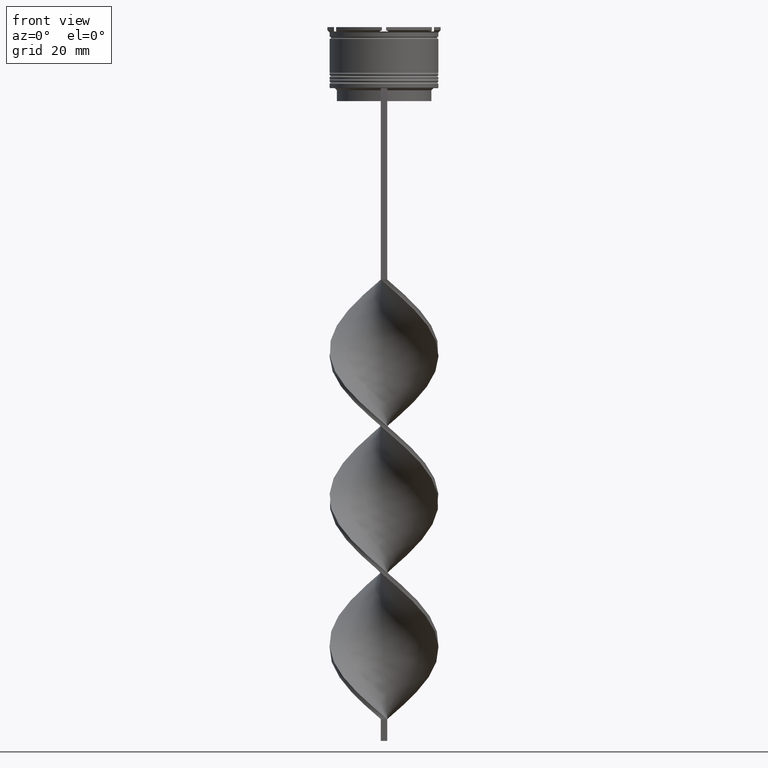
[diagram: clean part render]
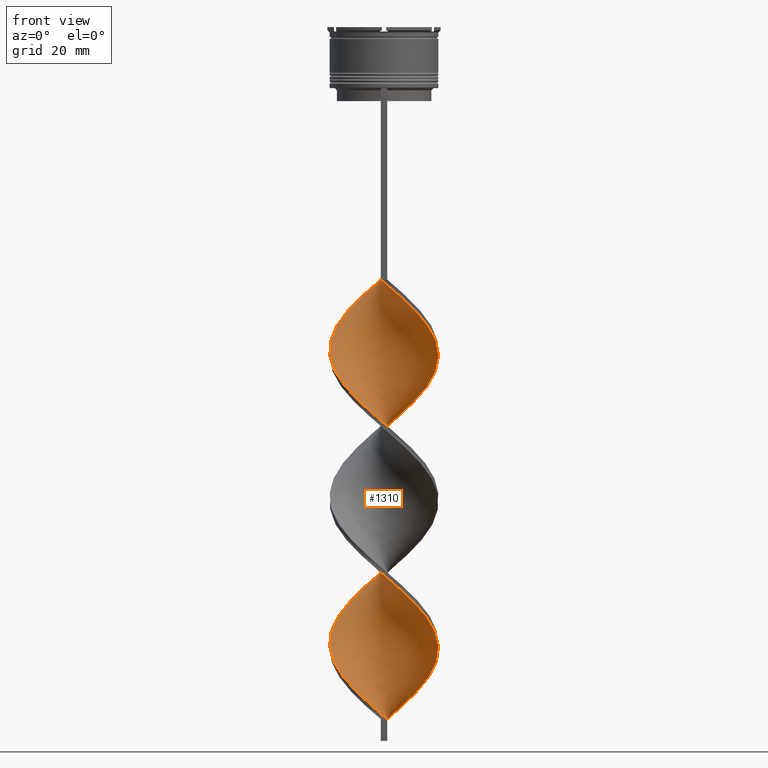
[diagram: same view with one face highlighted and labeled with its STEP entity id]
A machine part, front view. The second image highlights one B-rep face of the part: STEP entity #1310.
In plain terms, the highlighted face is a freeform B-spline surface patch.
Its self-contained STEP definition (entity closure, byte-faithful):
#5 = CARTESIAN_POINT ( 'NONE',  ( -12.13740119476140045, -3.350863215071107515, -144.4111111111111256 ) ) ;
#35 = CARTESIAN_POINT ( 'NONE',  ( 0.7499999999999983347, -12.50000000000000000, -91.66666666666667140 ) ) ;
#58 = CARTESIAN_POINT ( 'NONE',  ( -5.631329961908789983, -11.26201202755619768, -86.05555555555557135 ) ) ;
#63 = CARTESIAN_POINT ( 'NONE',  ( 8.787462363698281820, -8.921491198593773930, -66.97777777777777430 ) ) ;
#77 = CARTESIAN_POINT ( 'NONE',  ( -0.5638029408209594973, -12.57882817644926021, -90.54444444444445139 ) ) ;
#81 = CARTESIAN_POINT ( 'NONE',  ( 12.50992003955415832, 0.5607143693194618361, -75.95555555555554861 ) ) ;
#87 = CARTESIAN_POINT ( 'NONE',  ( -11.17548622105502254, -5.801146418745303457, -146.6555555555555657 ) ) ;
#100 = CARTESIAN_POINT ( 'NONE',  ( 3.332506835772350406, 12.07091124105925140, -156.7555555555555600 ) ) ;
#105 = CARTESIAN_POINT ( 'NONE',  ( -12.35312734465267503, 2.052497212371882540, -107.3777777777777942 ) ) ;
#110 = CARTESIAN_POINT ( 'NONE',  ( -3.166767928522321363, -12.18672937812252499, -155.6333333333333258 ) ) ;
#121 = CARTESIAN_POINT ( 'NONE',  ( -3.166767928522321363, -12.18672937812252499, -88.29999999999998295 ) ) ;
#126 = CARTESIAN_POINT ( 'NONE',  ( -11.78895181437690454, -4.423280136619386127, -112.9888888888888943 ) ) ;
#132 = CARTESIAN_POINT ( 'NONE',  ( 12.45098658456436169, -1.875559948311570135, -106.2555555555555742 ) ) ;
#137 = CARTESIAN_POINT ( 'NONE',  ( 7.849775853840624151, -9.845090710256194200, -65.85555555555555429 ) ) ;
#143 = CARTESIAN_POINT ( 'NONE',  ( -7.849775853840625039, -9.845090710256192423, -83.81111111111111711 ) ) ;
#147 = CARTESIAN_POINT ( 'NONE',  ( -0.7499999999999997780, -12.50000000000000000, -58.00000000000000000 ) ) ;
#151 = CARTESIAN_POINT ( 'NONE',  ( 0.5638029408209667137, 12.57882817644926021, -124.2111111111111370 ) ) ;
#158 = CARTESIAN_POINT ( 'NONE',  ( 12.11996919947063311, 3.149420042465477021, -78.20000000000000284 ) ) ;
#173 = CARTESIAN_POINT ( 'NONE',  ( -10.45031754730548457, -6.899519052838326338, -147.7777777777777715 ) ) ;
#179 = CARTESIAN_POINT ( 'NONE',  ( 10.61168328023406460, 6.777681757703949650, -81.56666666666666288 ) ) ;
#187 = CARTESIAN_POINT ( 'NONE',  ( -11.17548622105502076, -5.801146418745304345, -79.32222222222222285 ) ) ;
#197 = CARTESIAN_POINT ( 'NONE',  ( 9.725148873555948370, -7.997891686931351884, -68.10000000000000853 ) ) ;
#203 = CARTESIAN_POINT ( 'NONE',  ( -11.78895181437690276, 4.423280136619393232, -70.34444444444444855 ) ) ;
#207 = VERTEX_POINT ( 'NONE', #2902 ) ;
#213 = CARTESIAN_POINT ( 'NONE',  ( -7.849775853840619710, 9.845090710256194200, -99.52222222222223991 ) ) ;
#237 = CARTESIAN_POINT ( 'NONE',  ( 12.45098658456436169, -1.875559948311570357, -106.2555555555555742 ) ) ;
#260 = CARTESIAN_POINT ( 'NONE',  ( 12.11996919947063134, -3.149420042465480130, -105.1333333333333400 ) ) ;
#272 = CARTESIAN_POINT ( 'NONE',  ( 11.17548622105502076, -5.801146418745307898, -137.6777777777777487 ) ) ;
#277 = CARTESIAN_POINT ( 'NONE',  ( 5.769367131679449479, -11.11426573822566510, -96.15555555555556566 ) ) ;
#292 = CARTESIAN_POINT ( 'NONE',  ( 0.5638029408209559445, -12.57882817644925844, -126.4555555555555770 ) ) ;
#298 = CARTESIAN_POINT ( 'NONE',  ( 4.399048945215562334, 11.72437070283935689, -120.8444444444444485 ) ) ;
#319 = CARTESIAN_POINT ( 'NONE',  ( -11.20031754730548279, 5.600480947161673662, -136.5555555555555713 ) ) ;
#343 = CARTESIAN_POINT ( 'NONE',  ( -11.65644370790820972, -4.576004816908207040, -78.20000000000000284 ) ) ;
#364 = CARTESIAN_POINT ( 'NONE',  ( 3.332506835772342857, -12.07091124105925317, -93.91111111111111143 ) ) ;
#369 = CARTESIAN_POINT ( 'NONE',  ( -2.063802940820966381, -12.42117182355074334, -124.2111111111111370 ) ) ;
#386 = CARTESIAN_POINT ( 'NONE',  ( -0.7499999999999997780, 12.50000000000000000, -58.00000000000000000 ) ) ;
#390 = CARTESIAN_POINT ( 'NONE',  ( -8.787462363698281820, 8.921491198593777483, -100.6444444444444599 ) ) ;
#394 = ORIENTED_EDGE ( 'NONE', *, *, #740, .T. ) ;
#407 = CARTESIAN_POINT ( 'NONE',  ( -12.35312734465267859, -2.052497212371871438, -75.95555555555554861 ) ) ;
#411 = CARTESIAN_POINT ( 'NONE',  ( 0.5638029408209559445, -12.57882817644926021, -59.12222222222222712 ) ) ;
#416 = CARTESIAN_POINT ( 'NONE',  ( -4.399048945215555229, -11.72437070283936045, -154.5111111111111200 ) ) ;
#427 = CARTESIAN_POINT ( 'NONE',  ( -9.725148873555948370, -7.997891686931350996, -81.56666666666664867 ) ) ;
#433 = CARTESIAN_POINT ( 'NONE',  ( -12.50992003955415832, -0.5607143693194575063, -109.6222222222222342 ) ) ;
#438 = CARTESIAN_POINT ( 'NONE',  ( -12.35312734465267859, -2.052497212371871438, -143.2888888888889198 ) ) ;
#445 = CARTESIAN_POINT ( 'NONE',  ( -12.11996919947063311, -3.149420042465475689, -111.8666666666666742 ) ) ;
#458 = CARTESIAN_POINT ( 'NONE',  ( -6.937523532635176515, -10.50788081788355832, -119.7222222222222143 ) ) ;
#462 = CARTESIAN_POINT ( 'NONE',  ( 12.13740119476140222, 3.350863215071099965, -110.7444444444444542 ) ) ;
#466 = CARTESIAN_POINT ( 'NONE',  ( -1.865285434671634324, 12.38277877728589260, -93.91111111111111143 ) ) ;
#471 = CARTESIAN_POINT ( 'NONE',  ( -12.56885349454395495, -0.7541312096726363601, -74.83333333333332860 ) ) ;
#479 = CARTESIAN_POINT ( 'NONE',  ( 0.7499999999999983347, -12.50000000000000000, -159.0000000000000000 ) ) ;
#485 = CARTESIAN_POINT ( 'NONE',  ( -11.65644370790820794, 4.576004816908209705, -105.1333333333333400 ) ) ;
#493 = CARTESIAN_POINT ( 'NONE',  ( -12.35312734465267859, -2.052497212371871438, -75.95555555555554861 ) ) ;
#508 = CARTESIAN_POINT ( 'NONE',  ( 0.7500000000000013323, 12.50000000000000000, -159.0000000000000000 ) ) ;
#514 = CARTESIAN_POINT ( 'NONE',  ( -6.937523532635170298, 10.50788081788356187, -63.61111111111112137 ) ) ;
#523 = CARTESIAN_POINT ( 'NONE',  ( 6.937523532635174739, 10.50788081788355832, -86.05555555555557135 ) ) ;
#541 = CARTESIAN_POINT ( 'NONE',  ( 11.78895181437690276, 4.423280136619390568, -146.6555555555555657 ) ) ;
#545 = CARTESIAN_POINT ( 'NONE',  ( -5.631329961908789983, -11.26201202755619946, -153.3888888888889142 ) ) ;
#562 = CARTESIAN_POINT ( 'NONE',  ( 6.740552907874703514, -10.55355136890619860, -132.0666666666666629 ) ) ;
#566 = CARTESIAN_POINT ( 'NONE',  ( -7.849775853840625039, -9.845090710256192423, -151.1444444444444457 ) ) ;
#590 = CARTESIAN_POINT ( 'NONE',  ( -0.5638029408209594973, -12.57882817644925844, -90.54444444444445139 ) ) ;
#609 = CARTESIAN_POINT ( 'NONE',  ( 12.56885349454395495, 0.7541312096726348058, -108.5000000000000000 ) ) ;
#631 = CARTESIAN_POINT ( 'NONE',  ( 11.78895181437689743, -4.423280136619400338, -104.0111111111111057 ) ) ;
#651 = CARTESIAN_POINT ( 'NONE',  ( 0.7499999999999983347, -12.50000000000000000, -159.0000000000000000 ) ) ;
#658 = CARTESIAN_POINT ( 'NONE',  ( 12.11996919947063311, 3.149420042465477021, -145.5333333333333599 ) ) ;
#679 = CARTESIAN_POINT ( 'NONE',  ( 2.063802940820959275, 12.42117182355074334, -157.8777777777777942 ) ) ;
#685 = CARTESIAN_POINT ( 'NONE',  ( -8.970633266239085302, -8.835866163051408151, -117.4777777777777885 ) ) ;
#701 = CARTESIAN_POINT ( 'NONE',  ( 7.954078399437124247, -9.671873490467490342, -98.40000000000001990 ) ) ;
#706 = CARTESIAN_POINT ( 'NONE',  ( 11.65644370790820794, -4.576004816908208817, -71.46666666666668277 ) ) ;
#727 = CARTESIAN_POINT ( 'NONE',  ( 12.56885349454395495, -0.7541312096726379144, -142.1666666666666856 ) ) ;
#731 = CARTESIAN_POINT ( 'NONE',  ( 11.20031754730548457, 5.600480947161669221, -80.44444444444445708 ) ) ;
#737 = CARTESIAN_POINT ( 'NONE',  ( -5.631329961908789983, -11.26201202755619768, -153.3888888888889142 ) ) ;
#740 = EDGE_CURVE ( 'NONE', #207, #1861, #2352, .T. ) ;
#747 = CARTESIAN_POINT ( 'NONE',  ( -7.849775853840625039, -9.845090710256194200, -83.81111111111111711 ) ) ;
#751 = CARTESIAN_POINT ( 'NONE',  ( -12.13740119476139867, 3.350863215071115508, -106.2555555555555742 ) ) ;
#761 = CARTESIAN_POINT ( 'NONE',  ( 11.20031754730548457, 5.600480947161669221, -80.44444444444445708 ) ) ;
#771 = CARTESIAN_POINT ( 'NONE',  ( -1.865285434671634324, 12.38277877728589260, -93.91111111111111143 ) ) ;
#776 = CARTESIAN_POINT ( 'NONE',  ( 8.787462363698288925, 8.921491198593768601, -116.3555555555555685 ) ) ;
#782 = CARTESIAN_POINT ( 'NONE',  ( 5.631329961908785542, -11.26201202755620479, -63.61111111111112137 ) ) ;
#795 = CARTESIAN_POINT ( 'NONE',  ( 3.166767928522319586, -12.18672937812252499, -128.6999999999999886 ) ) ;
#800 = CARTESIAN_POINT ( 'NONE',  ( 12.50992003955415832, -0.5607143693194732714, -107.3777777777777942 ) ) ;
#804 = CARTESIAN_POINT ( 'NONE',  ( -0.7499999999999997780, -12.50000000000000000, -58.00000000000000000 ) ) ;
#819 = CARTESIAN_POINT ( 'NONE',  ( 9.725148873555950146, 7.997891686931350996, -115.2333333333333343 ) ) ;
#823 = CARTESIAN_POINT ( 'NONE',  ( -10.61168328023406637, -6.777681757703947873, -115.2333333333333343 ) ) ;
#829 = CARTESIAN_POINT ( 'NONE',  ( -0.7499999999999997780, 12.50000000000000000, -58.00000000000000000 ) ) ;
#842 = CARTESIAN_POINT ( 'NONE',  ( 12.45098658456435992, 1.875559948311562142, -77.07777777777778283 ) ) ;
#855 = VERTEX_POINT ( 'NONE', #651 ) ;
#863 = CARTESIAN_POINT ( 'NONE',  ( 5.769367131679455696, 11.11426573822565977, -154.5111111111111200 ) ) ;
#869 = CARTESIAN_POINT ( 'NONE',  ( 12.13740119476140222, 3.350863215071099965, -110.7444444444444542 ) ) ;
#880 = CARTESIAN_POINT ( 'NONE',  ( 11.20031754730548457, 5.600480947161669221, -147.7777777777777715 ) ) ;
#886 = CARTESIAN_POINT ( 'NONE',  ( 0.7499999999999983347, -12.50000000000000000, -91.66666666666667140 ) ) ;
#903 = CARTESIAN_POINT ( 'NONE',  ( 12.45098658456435992, 1.875559948311562142, -144.4111111111111256 ) ) ;
#907 = CARTESIAN_POINT ( 'NONE',  ( 7.954078399437124247, -9.671873490467490342, -98.40000000000001990 ) ) ;
#920 = ORIENTED_EDGE ( 'NONE', *, *, #2518, .F. ) ;
#928 = CARTESIAN_POINT ( 'NONE',  ( 2.063802940820950838, -12.42117182355074689, -92.78888888888889142 ) ) ;
#941 = CARTESIAN_POINT ( 'NONE',  ( -3.332506835772352183, -12.07091124105925140, -123.0888888888888886 ) ) ;
#945 = CARTESIAN_POINT ( 'NONE',  ( 7.849775853840630369, 9.845090710256187094, -117.4777777777777885 ) ) ;
#975 = CARTESIAN_POINT ( 'NONE',  ( -8.970633266239078196, 8.835866163051415256, -65.85555555555555429 ) ) ;
#999 = CARTESIAN_POINT ( 'NONE',  ( 12.45098658456435992, 1.875559948311562142, -144.4111111111111541 ) ) ;
#1004 = CARTESIAN_POINT ( 'NONE',  ( 2.063802940820959275, 12.42117182355074334, -90.54444444444445139 ) ) ;
#1016 = CARTESIAN_POINT ( 'NONE',  ( 7.954078399437126023, 9.671873490467488566, -152.2666666666666799 ) ) ;
#1022 = CARTESIAN_POINT ( 'NONE',  ( 7.849775853840622375, -9.845090710256195976, -65.85555555555555429 ) ) ;
#1039 = CARTESIAN_POINT ( 'NONE',  ( 11.20031754730548101, -5.600480947161677214, -102.8888888888888857 ) ) ;
#1044 = CARTESIAN_POINT ( 'NONE',  ( 5.769367131679455696, 11.11426573822565977, -87.17777777777779136 ) ) ;
#1052 = CARTESIAN_POINT ( 'NONE',  ( 11.17548622105502432, 5.801146418745299016, -112.9888888888888943 ) ) ;
#1063 = CARTESIAN_POINT ( 'NONE',  ( -10.45031754730548457, -6.899519052838326338, -80.44444444444445708 ) ) ;
#1068 = CARTESIAN_POINT ( 'NONE',  ( 12.35312734465267681, -2.052497212371875435, -73.71111111111112280 ) ) ;
#1072 = CARTESIAN_POINT ( 'NONE',  ( -7.954078399437124247, 9.671873490467490342, -132.0666666666666629 ) ) ;
#1078 = CARTESIAN_POINT ( 'NONE',  ( 10.45031754730548279, -6.899519052838330779, -69.22222222222222854 ) ) ;
#1086 = CARTESIAN_POINT ( 'NONE',  ( 10.45031754730548279, -6.899519052838330779, -69.22222222222222854 ) ) ;
#1088 = CARTESIAN_POINT ( 'NONE',  ( 6.740552907874707067, 10.55355136890619860, -118.6000000000000085 ) ) ;
#1095 = CARTESIAN_POINT ( 'NONE',  ( -3.166767928522318254, 12.18672937812252499, -95.03333333333331723 ) ) ;
#1104 = CARTESIAN_POINT ( 'NONE',  ( -5.631329961908789983, -11.26201202755619946, -86.05555555555557135 ) ) ;
#1109 = CARTESIAN_POINT ( 'NONE',  ( 1.865285434671637432, -12.38277877728589260, -127.5777777777777828 ) ) ;
#1119 = CARTESIAN_POINT ( 'NONE',  ( 2.063802940820959275, 12.42117182355074334, -90.54444444444445139 ) ) ;
#1153 = CARTESIAN_POINT ( 'NONE',  ( 1.865285434671637432, -12.38277877728589260, -60.24444444444444713 ) ) ;
#1175 = CARTESIAN_POINT ( 'NONE',  ( 12.13740119476140045, -3.350863215071111068, -139.9222222222222172 ) ) ;
#1181 = CARTESIAN_POINT ( 'NONE',  ( -2.063802940820955723, 12.42117182355074334, -59.12222222222222712 ) ) ;
#1192 = CARTESIAN_POINT ( 'NONE',  ( 12.35312734465267681, -2.052497212371875435, -141.0444444444444514 ) ) ;
#1198 = CARTESIAN_POINT ( 'NONE',  ( 10.61168328023406460, -6.777681757703953203, -101.7666666666666515 ) ) ;
#1220 = CARTESIAN_POINT ( 'NONE',  ( -4.399048945215555229, -11.72437070283936045, -154.5111111111111200 ) ) ;
#1244 = CARTESIAN_POINT ( 'NONE',  ( -11.65644370790820972, -4.576004816908207040, -145.5333333333333599 ) ) ;
#1261 = CARTESIAN_POINT ( 'NONE',  ( 7.954078399437126023, 9.671873490467488566, -152.2666666666666799 ) ) ;
#1265 = CARTESIAN_POINT ( 'NONE',  ( 6.937523532635167633, -10.50788081788356543, -97.27777777777779988 ) ) ;
#1286 = CARTESIAN_POINT ( 'NONE',  ( -11.17548622105502076, -5.801146418745304345, -146.6555555555555657 ) ) ;
#1310 = ADVANCED_FACE ( 'NONE', ( #2963 ), #1683, .T. ) ;
#1315 = CARTESIAN_POINT ( 'NONE',  ( 12.13740119476140045, -3.350863215071111068, -139.9222222222222172 ) ) ;
#1338 = CARTESIAN_POINT ( 'NONE',  ( 8.970633266239079973, 8.835866163051411704, -151.1444444444444457 ) ) ;
#1342 = CARTESIAN_POINT ( 'NONE',  ( -12.45098658456436169, -1.875559948311554814, -110.7444444444444542 ) ) ;
#1356 = CARTESIAN_POINT ( 'NONE',  ( 9.791158273236570508, -7.806773960377686450, -100.6444444444444599 ) ) ;
#1360 = CARTESIAN_POINT ( 'NONE',  ( 12.45098658456435992, 1.875559948311562142, -77.07777777777778283 ) ) ;
#1368 = CARTESIAN_POINT ( 'NONE',  ( 1.865285434671644538, 12.38277877728589083, -123.0888888888888886 ) ) ;
#1373 = DIRECTION ( 'NONE',  ( 0.000000000000000000, 1.000000000000000000, 0.000000000000000000 ) ) ;
#1379 = CARTESIAN_POINT ( 'NONE',  ( -4.601210730723737541, 11.72065065856775945, -61.36666666666666003 ) ) ;
#1384 = CARTESIAN_POINT ( 'NONE',  ( 9.725148873555946594, -7.997891686931353661, -68.10000000000002274 ) ) ;
#1392 = CARTESIAN_POINT ( 'NONE',  ( 4.399048945215562334, 11.72437070283935689, -120.8444444444444485 ) ) ;
#1402 = CARTESIAN_POINT ( 'NONE',  ( -7.954078399437124247, 9.671873490467490342, -64.73333333333333428 ) ) ;
#1407 = CARTESIAN_POINT ( 'NONE',  ( -3.166767928522318254, 12.18672937812252677, -95.03333333333331723 ) ) ;
#1410 = CARTESIAN_POINT ( 'NONE',  ( -11.78895181437690276, 4.423280136619394121, -137.6777777777777487 ) ) ;
#1415 = CARTESIAN_POINT ( 'NONE',  ( 11.17548622105502076, -5.801146418745307898, -70.34444444444444855 ) ) ;
#1422 = CARTESIAN_POINT ( 'NONE',  ( -6.740552907874705291, -10.55355136890619683, -84.93333333333333712 ) ) ;
#1427 = CARTESIAN_POINT ( 'NONE',  ( -11.65644370790820794, 4.576004816908209705, -105.1333333333333400 ) ) ;
#1429 = CARTESIAN_POINT ( 'NONE',  ( -0.7499999999999997780, 12.50000000000000000, -58.00000000000000000 ) ) ;
#1432 = CARTESIAN_POINT ( 'NONE',  ( -3.332506835772345077, 12.07091124105925317, -127.5777777777777828 ) ) ;
#1439 = CARTESIAN_POINT ( 'NONE',  ( -8.970633266239085302, -8.835866163051406375, -117.4777777777777885 ) ) ;
#1457 = CARTESIAN_POINT ( 'NONE',  ( -8.787462363698287149, -8.921491198593770378, -150.0222222222222115 ) ) ;
#1464 = CARTESIAN_POINT ( 'NONE',  ( -4.399048945215547235, 11.72437070283936222, -96.15555555555556566 ) ) ;
#1471 = CARTESIAN_POINT ( 'NONE',  ( -10.45031754730548457, -6.899519052838326338, -80.44444444444445708 ) ) ;
#1481 = CARTESIAN_POINT ( 'NONE',  ( 0.7499999999999983347, -12.50000000000000000, -159.0000000000000000 ) ) ;
#1486 = CARTESIAN_POINT ( 'NONE',  ( -3.166767928522320918, -12.18672937812252322, -88.29999999999998295 ) ) ;
#1519 = CARTESIAN_POINT ( 'NONE',  ( 3.166767928522319586, -12.18672937812252322, -128.7000000000000171 ) ) ;
#1524 = CARTESIAN_POINT ( 'NONE',  ( 9.725148873555950146, 7.997891686931350108, -115.2333333333333343 ) ) ;
#1541 = CARTESIAN_POINT ( 'NONE',  ( 12.35312734465267859, 2.052497212371866997, -109.6222222222222342 ) ) ;
#1561 = CARTESIAN_POINT ( 'NONE',  ( 10.45031754730548990, 6.899519052838320121, -114.1111111111111285 ) ) ;
#1577 = CARTESIAN_POINT ( 'NONE',  ( -4.601210730723740205, -11.72065065856775767, -121.9666666666666544 ) ) ;
#1582 = CARTESIAN_POINT ( 'NONE',  ( -4.601210730723736653, 11.72065065856775767, -128.7000000000000171 ) ) ;
#1602 = CARTESIAN_POINT ( 'NONE',  ( -11.78895181437690276, 4.423280136619393232, -137.6777777777777487 ) ) ;
#1611 = B_SPLINE_CURVE_WITH_KNOTS ( 'NONE', 3,
 ( #3890, #3578, #1984, #1481 ),
 .UNSPECIFIED., .F., .F.,
 ( 4, 4 ),
 ( 0.000000000000000000, 1.000000000000000000 ),
 .UNSPECIFIED. ) ;
#1625 = CARTESIAN_POINT ( 'NONE',  ( -4.399048945215555229, -11.72437070283936045, -87.17777777777779136 ) ) ;
#1649 = CARTESIAN_POINT ( 'NONE',  ( 10.45031754730548279, -6.899519052838330779, -136.5555555555555713 ) ) ;
#1656 = CARTESIAN_POINT ( 'NONE',  ( 12.13740119476140045, -3.350863215071111068, -72.58888888888890278 ) ) ;
#1673 = CARTESIAN_POINT ( 'NONE',  ( 0.7500000000000013323, 12.50000000000000000, -159.0000000000000000 ) ) ;
#1676 = CARTESIAN_POINT ( 'NONE',  ( 9.791158273236575837, 7.806773960377678456, -82.68888888888889710 ) ) ;
#1683 =( BOUNDED_SURFACE ( )  B_SPLINE_SURFACE ( 1, 2, ( 
 ( #147, #411, #3923, #2946, #1722, #2661, #2295, #1022, #63, #1384, #1086, #2683, #706, #1656, #1068, #1997, #81, #1360, #2720, #2318, #731, #3029, #1676, #2061, #3590, #3612, #1044, #3270, #2344, #1004, #3653, #2361, #771, #1407, #2017, #2035, #1700, #3011, #390, #3291, #3943, #2989, #1427, #751, #105, #3317, #433, #1342, #3567, #126, #2701, #3340, #3961, #685, #2381, #458, #1742, #1972, #3248, #369, #2639, #3900, #1109, #795, #3984, #2404, #3677, #2086, #2337, #2030, #1649, #3541, #3561, #1315, #2982, #727, #2013, #999, #658, #3264, #3895, #2916, #1717, #1338, #1016, #3628, #3241, #3004, #100, #679, #1673 ),
 ( #386, #3220, #3876, #1379, #3849, #2676, #1402, #975, #3607, #3309, #2940, #1940, #1962, #2612, #3939, #3287, #407, #2289, #343, #2960, #1063, #427, #2357, #747, #1695, #58, #1625, #121, #2268, #77, #35, #2653, #364, #2310, #2632, #3583, #701, #1991, #1356, #3917, #1039, #3658, #4010, #132, #800, #2044, #2993, #462, #3033, #1052, #2387, #819, #776, #3948, #1088, #2431, #1392, #2069, #1368, #151, #3345, #1747, #1432, #2705, #3681, #1769, #1072, #3988, #2686, #1685, #2020, #1410, #2091, #2971, #3297, #3966, #438, #3054, #2412, #87, #173, #3321, #1457, #2666, #2726, #737, #416, #110, #2750, #1707, #479 ) ),
 .UNSPECIFIED., .F., .F., .F. ) 
 B_SPLINE_SURFACE_WITH_KNOTS ( ( 2, 2 ),
 ( 3, 2, 2, 2, 2, 2, 2, 2, 2, 2, 2, 2, 2, 2, 2, 2, 2, 2, 2, 2, 2, 2, 2, 2, 2, 2, 2, 2, 2, 2, 2, 2, 2, 2, 2, 2, 2, 2, 2, 2, 2, 2, 2, 2, 2, 3 ),
 ( 0.000000000000000000, 1.000000000000000000 ),
 ( 0.000000000000000000, 0.01666666666666666644, 0.03333333333333333287, 0.05000000000000000278, 0.06666666666666666574, 0.08333333333333332871, 0.1000000000000000056, 0.1166666666666666685, 0.1333333333333333315, 0.1499999999999999944, 0.1666666666666666574, 0.1833333333333333204, 0.2000000000000000111, 0.2166666666666666741, 0.2333333333333333370, 0.2500000000000000000, 0.2666666666666666630, 0.2833333333333333259, 0.2999999999999999889, 0.3166666666666666519, 0.3333333333333333148, 0.3499999999999999778, 0.3666666666666666408, 0.3833333333333333592, 0.4000000000000000222, 0.4166666666666666852, 0.4333333333333333481, 0.4500000000000000111, 0.4666666666666666741, 0.4833333333333333370, 0.5000000000000000000, 0.5166666666666667185, 0.5333333333333333259, 0.5500000000000000444, 0.5666666666666666519, 0.5833333333333333703, 0.5999999999999999778, 0.6166666666666666963, 0.6333333333333333037, 0.6500000000000000222, 0.6666666666666666297, 0.6833333333333333481, 0.6999999999999999556, 0.7166666666666666741, 0.7333333333333332815, 0.7500000000000000000 ),
 .UNSPECIFIED. ) 
 GEOMETRIC_REPRESENTATION_ITEM ( )  RATIONAL_B_SPLINE_SURFACE ( (
 ( 1.000000000000000000, 0.9945218953682732899, 1.000000000000000000, 0.9945218953682732899, 1.000000000000000000, 0.9945218953682732899, 1.000000000000000000, 0.9945218953682732899, 1.000000000000000000, 0.9945218953682732899, 1.000000000000000000, 0.9945218953682732899, 1.000000000000000000, 0.9945218953682732899, 1.000000000000000000, 0.9945218953682732899, 1.000000000000000000, 0.9945218953682732899, 1.000000000000000000, 0.9945218953682732899, 1.000000000000000000, 0.9945218953682732899, 1.000000000000000000, 0.9945218953682732899, 1.000000000000000000, 0.9945218953682732899, 1.000000000000000000, 0.9945218953682732899, 1.000000000000000000, 0.9945218953682732899, 1.000000000000000000, 0.9945218953682732899, 1.000000000000000000, 0.9945218953682732899, 1.000000000000000000, 0.9945218953682732899, 1.000000000000000000, 0.9945218953682732899, 1.000000000000000000, 0.9945218953682732899, 1.000000000000000000, 0.9945218953682732899, 1.000000000000000000, 0.9945218953682732899, 1.000000000000000000, 0.9945218953682732899, 1.000000000000000000, 0.9945218953682732899, 1.000000000000000000, 0.9945218953682732899, 1.000000000000000000, 0.9945218953682732899, 1.000000000000000000, 0.9945218953682732899, 1.000000000000000000, 0.9945218953682732899, 1.000000000000000000, 0.9945218953682732899, 1.000000000000000000, 0.9945218953682732899, 1.000000000000000000, 0.9945218953682732899, 1.000000000000000000, 0.9945218953682732899, 1.000000000000000000, 0.9945218953682732899, 1.000000000000000000, 0.9945218953682732899, 1.000000000000000000, 0.9945218953682732899, 1.000000000000000000, 0.9945218953682732899, 1.000000000000000000, 0.9945218953682732899, 1.000000000000000000, 0.9945218953682732899, 1.000000000000000000, 0.9945218953682732899, 1.000000000000000000, 0.9945218953682732899, 1.000000000000000000, 0.9945218953682732899, 1.000000000000000000, 0.9945218953682732899, 1.000000000000000000, 0.9945218953682732899, 1.000000000000000000, 0.9945218953682732899, 1.000000000000000000, 0.9945218953682732899, 1.000000000000000000),
 ( 1.000000000000000000, 0.9945218953682732899, 1.000000000000000000, 0.9945218953682732899, 1.000000000000000000, 0.9945218953682732899, 1.000000000000000000, 0.9945218953682732899, 1.000000000000000000, 0.9945218953682732899, 1.000000000000000000, 0.9945218953682732899, 1.000000000000000000, 0.9945218953682732899, 1.000000000000000000, 0.9945218953682732899, 1.000000000000000000, 0.9945218953682732899, 1.000000000000000000, 0.9945218953682732899, 1.000000000000000000, 0.9945218953682732899, 1.000000000000000000, 0.9945218953682732899, 1.000000000000000000, 0.9945218953682732899, 1.000000000000000000, 0.9945218953682732899, 1.000000000000000000, 0.9945218953682732899, 1.000000000000000000, 0.9945218953682732899, 1.000000000000000000, 0.9945218953682732899, 1.000000000000000000, 0.9945218953682732899, 1.000000000000000000, 0.9945218953682732899, 1.000000000000000000, 0.9945218953682732899, 1.000000000000000000, 0.9945218953682732899, 1.000000000000000000, 0.9945218953682732899, 1.000000000000000000, 0.9945218953682732899, 1.000000000000000000, 0.9945218953682732899, 1.000000000000000000, 0.9945218953682732899, 1.000000000000000000, 0.9945218953682732899, 1.000000000000000000, 0.9945218953682732899, 1.000000000000000000, 0.9945218953682732899, 1.000000000000000000, 0.9945218953682732899, 1.000000000000000000, 0.9945218953682732899, 1.000000000000000000, 0.9945218953682732899, 1.000000000000000000, 0.9945218953682732899, 1.000000000000000000, 0.9945218953682732899, 1.000000000000000000, 0.9945218953682732899, 1.000000000000000000, 0.9945218953682732899, 1.000000000000000000, 0.9945218953682732899, 1.000000000000000000, 0.9945218953682732899, 1.000000000000000000, 0.9945218953682732899, 1.000000000000000000, 0.9945218953682732899, 1.000000000000000000, 0.9945218953682732899, 1.000000000000000000, 0.9945218953682732899, 1.000000000000000000, 0.9945218953682732899, 1.000000000000000000, 0.9945218953682732899, 1.000000000000000000, 0.9945218953682732899, 1.000000000000000000, 0.9945218953682732899, 1.000000000000000000) ) ) 
 REPRESENTATION_ITEM ( '' )  SURFACE ( )  );
#1685 = CARTESIAN_POINT ( 'NONE',  ( -10.61168328023406815, 6.777681757703951426, -135.4333333333333371 ) ) ;
#1695 = CARTESIAN_POINT ( 'NONE',  ( -6.740552907874705291, -10.55355136890619683, -84.93333333333333712 ) ) ;
#1700 = CARTESIAN_POINT ( 'NONE',  ( -6.740552907874702626, 10.55355136890619860, -98.40000000000001990 ) ) ;
#1707 = CARTESIAN_POINT ( 'NONE',  ( -0.5638029408209594973, -12.57882817644926021, -157.8777777777777942 ) ) ;
#1717 = CARTESIAN_POINT ( 'NONE',  ( 9.791158273236575837, 7.806773960377678456, -150.0222222222222115 ) ) ;
#1722 = CARTESIAN_POINT ( 'NONE',  ( 4.399048945215551676, -11.72437070283936222, -62.48888888888889426 ) ) ;
#1732 = CARTESIAN_POINT ( 'NONE',  ( -12.50992003955415832, -0.5607143693194575063, -109.6222222222222342 ) ) ;
#1738 = CARTESIAN_POINT ( 'NONE',  ( -9.725148873555948370, -7.997891686931350108, -81.56666666666666288 ) ) ;
#1741 = ORIENTED_EDGE ( 'NONE', *, *, #2553, .F. ) ;
#1742 = CARTESIAN_POINT ( 'NONE',  ( -5.769367131679462801, -11.11426573822565622, -120.8444444444444485 ) ) ;
#1747 = CARTESIAN_POINT ( 'NONE',  ( -2.063802940820956167, 12.42117182355074334, -126.4555555555555628 ) ) ;
#1752 = CARTESIAN_POINT ( 'NONE',  ( 0.7500000000000013323, 12.50000000000000000, -91.66666666666667140 ) ) ;
#1758 = CARTESIAN_POINT ( 'NONE',  ( -4.601210730723736653, 11.72065065856775767, -61.36666666666666003 ) ) ;
#1769 = CARTESIAN_POINT ( 'NONE',  ( -6.937523532635171186, 10.50788081788356187, -130.9444444444444287 ) ) ;
#1776 = CARTESIAN_POINT ( 'NONE',  ( -12.45098658456436169, -1.875559948311554592, -110.7444444444444542 ) ) ;
#1802 = CARTESIAN_POINT ( 'NONE',  ( -9.791158273236570508, 7.806773960377682897, -66.97777777777777430 ) ) ;
#1812 = CARTESIAN_POINT ( 'NONE',  ( 4.601210730723738429, 11.72065065856775767, -88.29999999999998295 ) ) ;
#1827 = CARTESIAN_POINT ( 'NONE',  ( 3.332506835772350406, 12.07091124105925140, -156.7555555555555600 ) ) ;
#1834 = CARTESIAN_POINT ( 'NONE',  ( 11.17548622105502254, 5.801146418745299904, -112.9888888888888943 ) ) ;
#1855 = CARTESIAN_POINT ( 'NONE',  ( -8.970633266239078196, 8.835866163051415256, -133.1888888888889255 ) ) ;
#1861 = VERTEX_POINT ( 'NONE', #1429 ) ;
#1875 = CARTESIAN_POINT ( 'NONE',  ( -9.791158273236570508, 7.806773960377682897, -134.3111111111111313 ) ) ;
#1886 = CARTESIAN_POINT ( 'NONE',  ( 12.50992003955415832, 0.5607143693194618361, -143.2888888888889198 ) ) ;
#1913 = CARTESIAN_POINT ( 'NONE',  ( 5.631329961908790871, 11.26201202755619946, -119.7222222222222143 ) ) ;
#1934 = CARTESIAN_POINT ( 'NONE',  ( -0.7499999999999997780, -12.50000000000000000, -58.00000000000000000 ) ) ;
#1940 = CARTESIAN_POINT ( 'NONE',  ( -11.78895181437690276, 4.423280136619394121, -70.34444444444443434 ) ) ;
#1962 = CARTESIAN_POINT ( 'NONE',  ( -12.11996919947063134, 3.149420042465478353, -71.46666666666668277 ) ) ;
#1972 = CARTESIAN_POINT ( 'NONE',  ( -4.601210730723740205, -11.72065065856775945, -121.9666666666666544 ) ) ;
#1977 = ORIENTED_EDGE ( 'NONE', *, *, #2347, .T. ) ;
#1984 = CARTESIAN_POINT ( 'NONE',  ( 0.7499999999999992228, -4.166666666666667851, -159.0000000000000000 ) ) ;
#1991 = CARTESIAN_POINT ( 'NONE',  ( 8.970633266239074644, -8.835866163051417033, -99.52222222222223991 ) ) ;
#1997 = CARTESIAN_POINT ( 'NONE',  ( 12.56885349454395495, -0.7541312096726379144, -74.83333333333334281 ) ) ;
#2013 = CARTESIAN_POINT ( 'NONE',  ( 12.50992003955415832, 0.5607143693194618361, -143.2888888888889198 ) ) ;
#2017 = CARTESIAN_POINT ( 'NONE',  ( -4.399048945215547235, 11.72437070283936222, -96.15555555555556566 ) ) ;
#2020 = CARTESIAN_POINT ( 'NONE',  ( -11.20031754730548279, 5.600480947161673662, -136.5555555555555713 ) ) ;
#2030 = CARTESIAN_POINT ( 'NONE',  ( 9.725148873555946594, -7.997891686931353661, -135.4333333333333371 ) ) ;
#2035 = CARTESIAN_POINT ( 'NONE',  ( -5.631329961908782877, 11.26201202755620123, -97.27777777777778567 ) ) ;
#2044 = CARTESIAN_POINT ( 'NONE',  ( 12.56885349454395495, 0.7541312096726349168, -108.5000000000000000 ) ) ;
#2050 = CARTESIAN_POINT ( 'NONE',  ( -5.631329961908782877, 11.26201202755620479, -97.27777777777779988 ) ) ;
#2057 = CARTESIAN_POINT ( 'NONE',  ( -12.50992003955415655, 0.5607143693194662770, -73.71111111111112280 ) ) ;
#2061 = CARTESIAN_POINT ( 'NONE',  ( 8.970633266239079973, 8.835866163051411704, -83.81111111111111711 ) ) ;
#2069 = CARTESIAN_POINT ( 'NONE',  ( 3.166767928522322695, 12.18672937812252499, -121.9666666666666544 ) ) ;
#2075 = CARTESIAN_POINT ( 'NONE',  ( 3.166767928522319586, -12.18672937812252322, -61.36666666666666003 ) ) ;
#2086 = CARTESIAN_POINT ( 'NONE',  ( 7.849775853840622375, -9.845090710256195976, -133.1888888888889255 ) ) ;
#2091 = CARTESIAN_POINT ( 'NONE',  ( -12.11996919947063134, 3.149420042465478353, -138.8000000000000114 ) ) ;
#2096 = CARTESIAN_POINT ( 'NONE',  ( 11.65644370790820794, -4.576004816908208817, -71.46666666666668277 ) ) ;
#2101 = CARTESIAN_POINT ( 'NONE',  ( -11.65644370790820972, -4.576004816908207040, -78.20000000000000284 ) ) ;
#2116 = CARTESIAN_POINT ( 'NONE',  ( 4.399048945215551676, -11.72437070283936222, -62.48888888888889426 ) ) ;
#2135 = CARTESIAN_POINT ( 'NONE',  ( 11.78895181437690276, 4.423280136619390568, -79.32222222222222285 ) ) ;
#2153 = CARTESIAN_POINT ( 'NONE',  ( 4.601210730723738429, 11.72065065856775767, -155.6333333333333542 ) ) ;
#2158 = CARTESIAN_POINT ( 'NONE',  ( 6.740552907874707067, 10.55355136890619860, -118.6000000000000085 ) ) ;
#2180 = CARTESIAN_POINT ( 'NONE',  ( 8.787462363698288925, 8.921491198593768601, -116.3555555555555685 ) ) ;
#2196 = CARTESIAN_POINT ( 'NONE',  ( 8.970633266239079973, 8.835866163051411704, -151.1444444444444457 ) ) ;
#2201 = CARTESIAN_POINT ( 'NONE',  ( -8.787462363698287149, -8.921491198593770378, -150.0222222222222115 ) ) ;
#2217 = CARTESIAN_POINT ( 'NONE',  ( 12.11996919947063311, 3.149420042465477021, -145.5333333333333599 ) ) ;
#2238 = CARTESIAN_POINT ( 'NONE',  ( 3.166767928522322695, 12.18672937812252322, -121.9666666666666544 ) ) ;
#2268 = CARTESIAN_POINT ( 'NONE',  ( -1.865285434671642761, -12.38277877728589083, -89.42222222222223138 ) ) ;
#2289 = CARTESIAN_POINT ( 'NONE',  ( -12.13740119476140045, -3.350863215071107515, -77.07777777777778283 ) ) ;
#2295 = CARTESIAN_POINT ( 'NONE',  ( 6.740552907874703514, -10.55355136890619860, -64.73333333333333428 ) ) ;
#2310 = CARTESIAN_POINT ( 'NONE',  ( 4.601210730723735765, -11.72065065856776123, -95.03333333333331723 ) ) ;
#2318 = CARTESIAN_POINT ( 'NONE',  ( 11.78895181437690276, 4.423280136619390568, -79.32222222222222285 ) ) ;
#2337 = CARTESIAN_POINT ( 'NONE',  ( 8.787462363698281820, -8.921491198593773930, -134.3111111111111313 ) ) ;
#2344 = CARTESIAN_POINT ( 'NONE',  ( 3.332506835772350406, 12.07091124105925140, -89.42222222222223138 ) ) ;
#2347 = EDGE_CURVE ( 'NONE', #1861, #855, #4132, .T. ) ;
#2352 = LINE ( 'NONE', #1934, #2910 ) ;
#2357 = CARTESIAN_POINT ( 'NONE',  ( -8.787462363698287149, -8.921491198593770378, -82.68888888888889710 ) ) ;
#2361 = CARTESIAN_POINT ( 'NONE',  ( -0.5638029408209509485, 12.57882817644926376, -92.78888888888889142 ) ) ;
#2371 = CARTESIAN_POINT ( 'NONE',  ( 12.50992003955415832, 0.5607143693194618361, -75.95555555555554861 ) ) ;
#2381 = CARTESIAN_POINT ( 'NONE',  ( -7.954078399437126912, -9.671873490467486789, -118.6000000000000085 ) ) ;
#2387 = CARTESIAN_POINT ( 'NONE',  ( 10.45031754730548990, 6.899519052838320121, -114.1111111111111285 ) ) ;
#2393 = CARTESIAN_POINT ( 'NONE',  ( -10.45031754730548101, 6.899519052838334332, -102.8888888888888857 ) ) ;
#2404 = CARTESIAN_POINT ( 'NONE',  ( 5.631329961908785542, -11.26201202755620123, -130.9444444444444287 ) ) ;
#2412 = CARTESIAN_POINT ( 'NONE',  ( -11.65644370790820972, -4.576004816908207040, -145.5333333333333599 ) ) ;
#2423 = CARTESIAN_POINT ( 'NONE',  ( -12.13740119476140045, -3.350863215071107515, -77.07777777777778283 ) ) ;
#2431 = CARTESIAN_POINT ( 'NONE',  ( 5.631329961908790871, 11.26201202755619768, -119.7222222222222143 ) ) ;
#2435 = CARTESIAN_POINT ( 'NONE',  ( 7.954078399437126023, 9.671873490467488566, -84.93333333333333712 ) ) ;
#2457 = CARTESIAN_POINT ( 'NONE',  ( 12.35312734465267681, -2.052497212371875435, -73.71111111111112280 ) ) ;
#2476 = CARTESIAN_POINT ( 'NONE',  ( -6.937523532635175627, -10.50788081788355832, -119.7222222222222143 ) ) ;
#2481 = CARTESIAN_POINT ( 'NONE',  ( -11.20031754730548279, 5.600480947161673662, -69.22222222222222854 ) ) ;
#2498 = CARTESIAN_POINT ( 'NONE',  ( -5.769367131679452143, 11.11426573822566155, -129.8222222222222229 ) ) ;
#2518 = EDGE_CURVE ( 'NONE', #3289, #855, #1611, .T. ) ;
#2520 = CARTESIAN_POINT ( 'NONE',  ( -1.865285434671642761, -12.38277877728589083, -156.7555555555555600 ) ) ;
#2538 = CARTESIAN_POINT ( 'NONE',  ( -5.769367131679462801, -11.11426573822565622, -120.8444444444444485 ) ) ;
#2544 = CARTESIAN_POINT ( 'NONE',  ( 8.970633266239074644, -8.835866163051417033, -99.52222222222223991 ) ) ;
#2553 = EDGE_CURVE ( 'NONE', #207, #3289, #4009, .T. ) ;
#2560 = CARTESIAN_POINT ( 'NONE',  ( 11.20031754730548101, -5.600480947161677214, -102.8888888888888857 ) ) ;
#2582 = CARTESIAN_POINT ( 'NONE',  ( -9.725148873555948370, -7.997891686931350108, -148.8999999999999773 ) ) ;
#2612 = CARTESIAN_POINT ( 'NONE',  ( -12.45098658456435992, 1.875559948311566361, -72.58888888888890278 ) ) ;
#2632 = CARTESIAN_POINT ( 'NONE',  ( 5.769367131679449479, -11.11426573822566510, -96.15555555555556566 ) ) ;
#2639 = CARTESIAN_POINT ( 'NONE',  ( -0.7499999999999997780, -12.50000000000000000, -125.3333333333333570 ) ) ;
#2653 = CARTESIAN_POINT ( 'NONE',  ( 2.063802940820950838, -12.42117182355074689, -92.78888888888889142 ) ) ;
#2661 = CARTESIAN_POINT ( 'NONE',  ( 5.631329961908785542, -11.26201202755620123, -63.61111111111111427 ) ) ;
#2666 = CARTESIAN_POINT ( 'NONE',  ( -7.849775853840625039, -9.845090710256194200, -151.1444444444444457 ) ) ;
#2676 = CARTESIAN_POINT ( 'NONE',  ( -6.937523532635171186, 10.50788081788356187, -63.61111111111111427 ) ) ;
#2683 = CARTESIAN_POINT ( 'NONE',  ( 11.17548622105502254, -5.801146418745307010, -70.34444444444443434 ) ) ;
#2686 = CARTESIAN_POINT ( 'NONE',  ( -9.791158273236570508, 7.806773960377682897, -134.3111111111111313 ) ) ;
#2701 = CARTESIAN_POINT ( 'NONE',  ( -11.20031754730548634, -5.600480947161663003, -114.1111111111111285 ) ) ;
#2705 = CARTESIAN_POINT ( 'NONE',  ( -4.601210730723737541, 11.72065065856775945, -128.6999999999999886 ) ) ;
#2710 = CARTESIAN_POINT ( 'NONE',  ( 3.332506835772350406, 12.07091124105925140, -89.42222222222223138 ) ) ;
#2716 = CARTESIAN_POINT ( 'NONE',  ( -5.769367131679452143, 11.11426573822566155, -62.48888888888889426 ) ) ;
#2720 = CARTESIAN_POINT ( 'NONE',  ( 12.11996919947063311, 3.149420042465477021, -78.20000000000000284 ) ) ;
#2726 = CARTESIAN_POINT ( 'NONE',  ( -6.740552907874705291, -10.55355136890619683, -152.2666666666666799 ) ) ;
#2732 = CARTESIAN_POINT ( 'NONE',  ( 12.13740119476140045, -3.350863215071111068, -72.58888888888890278 ) ) ;
#2739 = CARTESIAN_POINT ( 'NONE',  ( -12.45098658456435992, 1.875559948311566139, -72.58888888888890278 ) ) ;
#2750 = CARTESIAN_POINT ( 'NONE',  ( -1.865285434671642761, -12.38277877728589083, -156.7555555555555600 ) ) ;
#2755 = CARTESIAN_POINT ( 'NONE',  ( -8.787462363698281820, 8.921491198593777483, -100.6444444444444599 ) ) ;
#2771 = CARTESIAN_POINT ( 'NONE',  ( 12.56885349454395495, -0.7541312096726379144, -74.83333333333332860 ) ) ;
#2776 = CARTESIAN_POINT ( 'NONE',  ( -1.865285434671642761, -12.38277877728589083, -89.42222222222223138 ) ) ;
#2792 = CARTESIAN_POINT ( 'NONE',  ( 5.631329961908785542, -11.26201202755620479, -130.9444444444444571 ) ) ;
#2812 = CARTESIAN_POINT ( 'NONE',  ( 10.61168328023406460, 6.777681757703949650, -148.8999999999999773 ) ) ;
#2816 = CARTESIAN_POINT ( 'NONE',  ( 1.865285434671644538, 12.38277877728589083, -123.0888888888888886 ) ) ;
#2829 = CARTESIAN_POINT ( 'NONE',  ( -2.063802940820966381, -12.42117182355074334, -124.2111111111111370 ) ) ;
#2834 = CARTESIAN_POINT ( 'NONE',  ( -0.7499999999999997780, 12.50000000000000000, -125.3333333333333570 ) ) ;
#2854 = CARTESIAN_POINT ( 'NONE',  ( 9.791158273236570508, -7.806773960377686450, -100.6444444444444599 ) ) ;
#2869 = CARTESIAN_POINT ( 'NONE',  ( 7.849775853840624151, -9.845090710256194200, -133.1888888888889255 ) ) ;
#2875 = CARTESIAN_POINT ( 'NONE',  ( -10.45031754730548457, -6.899519052838326338, -147.7777777777777715 ) ) ;
#2894 = CARTESIAN_POINT ( 'NONE',  ( -12.35312734465267859, -2.052497212371871438, -143.2888888888889198 ) ) ;
#2902 = CARTESIAN_POINT ( 'NONE',  ( -0.7499999999999997780, -12.50000000000000000, -58.00000000000000000 ) ) ;
#2910 = VECTOR ( 'NONE', #1373, 1000.000000000000000 ) ;
#2916 = CARTESIAN_POINT ( 'NONE',  ( 10.61168328023406637, 6.777681757703949650, -148.8999999999999488 ) ) ;
#2940 = CARTESIAN_POINT ( 'NONE',  ( -11.20031754730548279, 5.600480947161673662, -69.22222222222222854 ) ) ;
#2946 = CARTESIAN_POINT ( 'NONE',  ( 3.166767928522319586, -12.18672937812252499, -61.36666666666666003 ) ) ;
#2960 = CARTESIAN_POINT ( 'NONE',  ( -11.17548622105502254, -5.801146418745303457, -79.32222222222222285 ) ) ;
#2963 = FACE_OUTER_BOUND ( 'NONE', #3810, .T. ) ;
#2971 = CARTESIAN_POINT ( 'NONE',  ( -12.45098658456435992, 1.875559948311566361, -139.9222222222222172 ) ) ;
#2982 = CARTESIAN_POINT ( 'NONE',  ( 12.35312734465267681, -2.052497212371875435, -141.0444444444444514 ) ) ;
#2989 = CARTESIAN_POINT ( 'NONE',  ( -11.17548622105501721, 5.801146418745314115, -104.0111111111111200 ) ) ;
#2993 = CARTESIAN_POINT ( 'NONE',  ( 12.35312734465267859, 2.052497212371866997, -109.6222222222222342 ) ) ;
#3004 = CARTESIAN_POINT ( 'NONE',  ( 4.601210730723739317, 11.72065065856775945, -155.6333333333333258 ) ) ;
#3011 = CARTESIAN_POINT ( 'NONE',  ( -7.849775853840618822, 9.845090710256195976, -99.52222222222223991 ) ) ;
#3020 = CARTESIAN_POINT ( 'NONE',  ( -9.791158273236577614, -7.806773960377676680, -116.3555555555555685 ) ) ;
#3029 = CARTESIAN_POINT ( 'NONE',  ( 10.61168328023406637, 6.777681757703949650, -81.56666666666664867 ) ) ;
#3033 = CARTESIAN_POINT ( 'NONE',  ( 11.65644370790820972, 4.576004816908206152, -111.8666666666666742 ) ) ;
#3039 = CARTESIAN_POINT ( 'NONE',  ( -6.740552907874702626, 10.55355136890619860, -98.40000000000001990 ) ) ;
#3045 = CARTESIAN_POINT ( 'NONE',  ( -7.954078399437124247, 9.671873490467490342, -64.73333333333333428 ) ) ;
#3054 = CARTESIAN_POINT ( 'NONE',  ( -12.13740119476140045, -3.350863215071107515, -144.4111111111111541 ) ) ;
#3061 = CARTESIAN_POINT ( 'NONE',  ( 9.791158273236575837, 7.806773960377678456, -82.68888888888889710 ) ) ;
#3081 = CARTESIAN_POINT ( 'NONE',  ( 0.5638029408209559445, -12.57882817644925844, -59.12222222222222712 ) ) ;
#3087 = CARTESIAN_POINT ( 'NONE',  ( -10.61168328023406637, 6.777681757703951426, -68.10000000000000853 ) ) ;
#3117 = CARTESIAN_POINT ( 'NONE',  ( 0.7500000000000013323, 12.50000000000000000, -159.0000000000000000 ) ) ;
#3123 = CARTESIAN_POINT ( 'NONE',  ( -7.954078399437124247, 9.671873490467490342, -132.0666666666666629 ) ) ;
#3142 = CARTESIAN_POINT ( 'NONE',  ( -6.937523532635170298, 10.50788081788356187, -130.9444444444444571 ) ) ;
#3158 = CARTESIAN_POINT ( 'NONE',  ( 0.7499999999999983347, -12.50000000000000000, -159.0000000000000000 ) ) ;
#3177 = CARTESIAN_POINT ( 'NONE',  ( -12.50992003955415655, 0.5607143693194662770, -141.0444444444444514 ) ) ;
#3192 = CARTESIAN_POINT ( 'NONE',  ( 12.56885349454395495, -0.7541312096726379144, -142.1666666666666856 ) ) ;
#3197 = CARTESIAN_POINT ( 'NONE',  ( 0.5638029408209667137, 12.57882817644925844, -124.2111111111111370 ) ) ;
#3220 = CARTESIAN_POINT ( 'NONE',  ( -2.063802940820956167, 12.42117182355074334, -59.12222222222222712 ) ) ;
#3241 = CARTESIAN_POINT ( 'NONE',  ( 5.769367131679455696, 11.11426573822565977, -154.5111111111111200 ) ) ;
#3248 = CARTESIAN_POINT ( 'NONE',  ( -3.332506835772352183, -12.07091124105925140, -123.0888888888888886 ) ) ;
#3264 = CARTESIAN_POINT ( 'NONE',  ( 11.78895181437690276, 4.423280136619390568, -146.6555555555555657 ) ) ;
#3270 = CARTESIAN_POINT ( 'NONE',  ( 4.601210730723739317, 11.72065065856775945, -88.29999999999998295 ) ) ;
#3287 = CARTESIAN_POINT ( 'NONE',  ( -12.56885349454395495, -0.7541312096726363601, -74.83333333333334281 ) ) ;
#3289 = VERTEX_POINT ( 'NONE', #508 ) ;
#3291 = CARTESIAN_POINT ( 'NONE',  ( -9.725148873555944817, 7.997891686931354549, -101.7666666666666515 ) ) ;
#3297 = CARTESIAN_POINT ( 'NONE',  ( -12.50992003955415655, 0.5607143693194662770, -141.0444444444444514 ) ) ;
#3309 = CARTESIAN_POINT ( 'NONE',  ( -10.61168328023406815, 6.777681757703951426, -68.10000000000002274 ) ) ;
#3317 = CARTESIAN_POINT ( 'NONE',  ( -12.56885349454395495, 0.7541312096726394687, -108.5000000000000000 ) ) ;
#3321 = CARTESIAN_POINT ( 'NONE',  ( -9.725148873555948370, -7.997891686931350996, -148.8999999999999488 ) ) ;
#3326 = CARTESIAN_POINT ( 'NONE',  ( -12.56885349454395495, 0.7541312096726393577, -108.5000000000000000 ) ) ;
#3340 = CARTESIAN_POINT ( 'NONE',  ( -10.61168328023406815, -6.777681757703947873, -115.2333333333333343 ) ) ;
#3345 = CARTESIAN_POINT ( 'NONE',  ( -0.7499999999999997780, 12.50000000000000000, -125.3333333333333570 ) ) ;
#3349 = CARTESIAN_POINT ( 'NONE',  ( 5.769367131679455696, 11.11426573822565977, -87.17777777777779136 ) ) ;
#3368 = CARTESIAN_POINT ( 'NONE',  ( -9.725148873555946594, 7.997891686931353661, -101.7666666666666515 ) ) ;
#3389 = CARTESIAN_POINT ( 'NONE',  ( -7.954078399437126912, -9.671873490467486789, -118.6000000000000085 ) ) ;
#3394 = CARTESIAN_POINT ( 'NONE',  ( -3.332506835772345077, 12.07091124105925317, -60.24444444444444713 ) ) ;
#3405 = CARTESIAN_POINT ( 'NONE',  ( 8.970633266239079973, 8.835866163051411704, -83.81111111111111711 ) ) ;
#3423 = CARTESIAN_POINT ( 'NONE',  ( 8.787462363698281820, -8.921491198593773930, -134.3111111111111313 ) ) ;
#3428 = CARTESIAN_POINT ( 'NONE',  ( -12.45098658456435992, 1.875559948311566139, -139.9222222222222172 ) ) ;
#3442 = CARTESIAN_POINT ( 'NONE',  ( 2.063802940820959275, 12.42117182355074334, -157.8777777777777942 ) ) ;
#3447 = CARTESIAN_POINT ( 'NONE',  ( -12.11996919947063134, 3.149420042465478353, -138.8000000000000114 ) ) ;
#3467 = CARTESIAN_POINT ( 'NONE',  ( -0.7499999999999997780, -12.50000000000000000, -125.3333333333333570 ) ) ;
#3472 = CARTESIAN_POINT ( 'NONE',  ( -10.61168328023406637, 6.777681757703951426, -135.4333333333333371 ) ) ;
#3491 = CARTESIAN_POINT ( 'NONE',  ( -6.740552907874705291, -10.55355136890619683, -152.2666666666666799 ) ) ;
#3506 = CARTESIAN_POINT ( 'NONE',  ( 6.937523532635174739, 10.50788081788355832, -153.3888888888889142 ) ) ;
#3513 = CARTESIAN_POINT ( 'NONE',  ( -2.063802940820955723, 12.42117182355074334, -126.4555555555555770 ) ) ;
#3541 = CARTESIAN_POINT ( 'NONE',  ( 11.17548622105502254, -5.801146418745307010, -137.6777777777777487 ) ) ;
#3561 = CARTESIAN_POINT ( 'NONE',  ( 11.65644370790820794, -4.576004816908208817, -138.8000000000000114 ) ) ;
#3567 = CARTESIAN_POINT ( 'NONE',  ( -12.11996919947063311, -3.149420042465475689, -111.8666666666666742 ) ) ;
#3578 = CARTESIAN_POINT ( 'NONE',  ( 0.7500000000000003331, 4.166666666666667851, -159.0000000000000000 ) ) ;
#3583 = CARTESIAN_POINT ( 'NONE',  ( 6.937523532635168522, -10.50788081788356543, -97.27777777777778567 ) ) ;
#3590 = CARTESIAN_POINT ( 'NONE',  ( 7.954078399437126023, 9.671873490467488566, -84.93333333333333712 ) ) ;
#3607 = CARTESIAN_POINT ( 'NONE',  ( -9.791158273236570508, 7.806773960377682897, -66.97777777777777430 ) ) ;
#3612 = CARTESIAN_POINT ( 'NONE',  ( 6.937523532635175627, 10.50788081788355832, -86.05555555555557135 ) ) ;
#3628 = CARTESIAN_POINT ( 'NONE',  ( 6.937523532635175627, 10.50788081788355832, -153.3888888888889142 ) ) ;
#3639 = CARTESIAN_POINT ( 'NONE',  ( -11.17548622105501721, 5.801146418745314115, -104.0111111111111057 ) ) ;
#3653 = CARTESIAN_POINT ( 'NONE',  ( 0.7500000000000013323, 12.50000000000000000, -91.66666666666667140 ) ) ;
#3658 = CARTESIAN_POINT ( 'NONE',  ( 11.78895181437689743, -4.423280136619401226, -104.0111111111111200 ) ) ;
#3663 = CARTESIAN_POINT ( 'NONE',  ( -12.13740119476139867, 3.350863215071115508, -106.2555555555555742 ) ) ;
#3677 = CARTESIAN_POINT ( 'NONE',  ( 6.740552907874703514, -10.55355136890619860, -132.0666666666666629 ) ) ;
#3681 = CARTESIAN_POINT ( 'NONE',  ( -5.769367131679452143, 11.11426573822566155, -129.8222222222222229 ) ) ;
#3685 = CARTESIAN_POINT ( 'NONE',  ( 8.787462363698281820, -8.921491198593773930, -66.97777777777777430 ) ) ;
#3701 = CARTESIAN_POINT ( 'NONE',  ( -11.20031754730548634, -5.600480947161663003, -114.1111111111111285 ) ) ;
#3744 = CARTESIAN_POINT ( 'NONE',  ( 9.791158273236575837, 7.806773960377678456, -150.0222222222222115 ) ) ;
#3749 = CARTESIAN_POINT ( 'NONE',  ( -12.11996919947063134, 3.149420042465478353, -71.46666666666668277 ) ) ;
#3757 = CARTESIAN_POINT ( 'NONE',  ( 10.45031754730548279, -6.899519052838330779, -136.5555555555555713 ) ) ;
#3762 = CARTESIAN_POINT ( 'NONE',  ( -12.56885349454395495, -0.7541312096726363601, -142.1666666666666856 ) ) ;
#3778 = CARTESIAN_POINT ( 'NONE',  ( 11.65644370790820794, -4.576004816908208817, -138.8000000000000114 ) ) ;
#3783 = CARTESIAN_POINT ( 'NONE',  ( -0.5638029408209594973, -12.57882817644925844, -157.8777777777777942 ) ) ;
#3804 = CARTESIAN_POINT ( 'NONE',  ( 12.50992003955415832, -0.5607143693194732714, -107.3777777777777942 ) ) ;
#3810 = EDGE_LOOP ( 'NONE', ( #394, #1977, #920, #1741 ) ) ;
#3817 = CARTESIAN_POINT ( 'NONE',  ( 4.399048945215551676, -11.72437070283936222, -129.8222222222222229 ) ) ;
#3821 = CARTESIAN_POINT ( 'NONE',  ( 11.65644370790820972, 4.576004816908206152, -111.8666666666666742 ) ) ;
#3849 = CARTESIAN_POINT ( 'NONE',  ( -5.769367131679452143, 11.11426573822566155, -62.48888888888889426 ) ) ;
#3876 = CARTESIAN_POINT ( 'NONE',  ( -3.332506835772345077, 12.07091124105925317, -60.24444444444444713 ) ) ;
#3890 = CARTESIAN_POINT ( 'NONE',  ( 0.7500000000000013323, 12.50000000000000000, -159.0000000000000000 ) ) ;
#3895 = CARTESIAN_POINT ( 'NONE',  ( 11.20031754730548457, 5.600480947161669221, -147.7777777777777715 ) ) ;
#3900 = CARTESIAN_POINT ( 'NONE',  ( 0.5638029408209559445, -12.57882817644926021, -126.4555555555555628 ) ) ;
#3917 = CARTESIAN_POINT ( 'NONE',  ( 10.61168328023406637, -6.777681757703953203, -101.7666666666666515 ) ) ;
#3923 = CARTESIAN_POINT ( 'NONE',  ( 1.865285434671637432, -12.38277877728589260, -60.24444444444444713 ) ) ;
#3939 = CARTESIAN_POINT ( 'NONE',  ( -12.50992003955415655, 0.5607143693194662770, -73.71111111111112280 ) ) ;
#3943 = CARTESIAN_POINT ( 'NONE',  ( -10.45031754730548101, 6.899519052838334332, -102.8888888888888857 ) ) ;
#3948 = CARTESIAN_POINT ( 'NONE',  ( 7.849775853840630369, 9.845090710256188871, -117.4777777777777885 ) ) ;
#3953 = CARTESIAN_POINT ( 'NONE',  ( 6.740552907874703514, -10.55355136890619860, -64.73333333333333428 ) ) ;
#3961 = CARTESIAN_POINT ( 'NONE',  ( -9.791158273236577614, -7.806773960377676680, -116.3555555555555685 ) ) ;
#3966 = CARTESIAN_POINT ( 'NONE',  ( -12.56885349454395495, -0.7541312096726363601, -142.1666666666666856 ) ) ;
#3972 = CARTESIAN_POINT ( 'NONE',  ( -0.5638029408209508375, 12.57882817644926199, -92.78888888888889142 ) ) ;
#3979 = CARTESIAN_POINT ( 'NONE',  ( -8.787462363698287149, -8.921491198593770378, -82.68888888888889710 ) ) ;
#3984 = CARTESIAN_POINT ( 'NONE',  ( 4.399048945215551676, -11.72437070283936222, -129.8222222222222229 ) ) ;
#3988 = CARTESIAN_POINT ( 'NONE',  ( -8.970633266239078196, 8.835866163051415256, -133.1888888888889255 ) ) ;
#3994 = CARTESIAN_POINT ( 'NONE',  ( -11.78895181437690454, -4.423280136619386127, -112.9888888888888943 ) ) ;
#4002 = CARTESIAN_POINT ( 'NONE',  ( -8.970633266239078196, 8.835866163051415256, -65.85555555555555429 ) ) ;
#4009 =( BOUNDED_CURVE ( )  B_SPLINE_CURVE ( 2, ( #804, #3081, #1153, #2075, #2116, #782, #3953, #137, #3685, #197, #1078, #1415, #2096, #2732, #2457, #2771, #2371, #842, #158, #2135, #761, #179, #3061, #3405, #2435, #523, #3349, #1812, #2710, #1119, #1752, #3972, #466, #1095, #1464, #2050, #3039, #213, #2755, #3368, #2393, #3639, #485, #3663, #4013, #3326, #1732, #1776, #445, #3994, #3701, #823, #3020, #1439, #3389, #2476, #2538, #1577, #941, #2829, #3467, #292, #4128, #1519, #3817, #2792, #562, #2869, #3423, #4068, #3757, #272, #3778, #1175, #1192, #3192, #1886, #903, #2217, #541, #880, #2812, #3744, #2196, #1261, #3506, #863, #2153, #1827, #3442, #3117 ),
 .UNSPECIFIED., .F., .T. ) 
 B_SPLINE_CURVE_WITH_KNOTS ( ( 3, 2, 2, 2, 2, 2, 2, 2, 2, 2, 2, 2, 2, 2, 2, 2, 2, 2, 2, 2, 2, 2, 2, 2, 2, 2, 2, 2, 2, 2, 2, 2, 2, 2, 2, 2, 2, 2, 2, 2, 2, 2, 2, 2, 2, 3 ),
 ( 0.000000000000000000, 0.01666666666666666644, 0.03333333333333333287, 0.05000000000000000971, 0.06666666666666666574, 0.08333333333333332871, 0.1000000000000000194, 0.1166666666666666546, 0.1333333333333333315, 0.1499999999999999944, 0.1666666666666666574, 0.1833333333333333204, 0.2000000000000000389, 0.2166666666666666741, 0.2333333333333333093, 0.2500000000000000000, 0.2666666666666666630, 0.2833333333333333259, 0.2999999999999999889, 0.3166666666666666519, 0.3333333333333333148, 0.3499999999999999223, 0.3666666666666666408, 0.3833333333333333592, 0.4000000000000000777, 0.4166666666666666852, 0.4333333333333333481, 0.4500000000000000111, 0.4666666666666666186, 0.4833333333333333370, 0.5000000000000000000, 0.5166666666666667185, 0.5333333333333333259, 0.5500000000000000444, 0.5666666666666666519, 0.5833333333333333703, 0.5999999999999999778, 0.6166666666666666963, 0.6333333333333333037, 0.6500000000000000222, 0.6666666666666666297, 0.6833333333333332371, 0.6999999999999998446, 0.7166666666666666741, 0.7333333333333332815, 0.7500000000000000000 ),
 .UNSPECIFIED. ) 
 CURVE ( )  GEOMETRIC_REPRESENTATION_ITEM ( )  RATIONAL_B_SPLINE_CURVE ( ( 1.000000000000000000, 0.9945218953682732899, 1.000000000000000000, 0.9945218953682732899, 1.000000000000000000, 0.9945218953682732899, 1.000000000000000000, 0.9945218953682732899, 1.000000000000000000, 0.9945218953682732899, 1.000000000000000000, 0.9945218953682732899, 1.000000000000000000, 0.9945218953682732899, 1.000000000000000000, 0.9945218953682732899, 1.000000000000000000, 0.9945218953682732899, 1.000000000000000000, 0.9945218953682732899, 1.000000000000000000, 0.9945218953682732899, 1.000000000000000000, 0.9945218953682732899, 1.000000000000000000, 0.9945218953682732899, 1.000000000000000000, 0.9945218953682732899, 1.000000000000000000, 0.9945218953682732899, 1.000000000000000000, 0.9945218953682732899, 1.000000000000000000, 0.9945218953682732899, 1.000000000000000000, 0.9945218953682732899, 1.000000000000000000, 0.9945218953682732899, 1.000000000000000000, 0.9945218953682732899, 1.000000000000000000, 0.9945218953682732899, 1.000000000000000000, 0.9945218953682732899, 1.000000000000000000, 0.9945218953682732899, 1.000000000000000000, 0.9945218953682732899, 1.000000000000000000, 0.9945218953682732899, 1.000000000000000000, 0.9945218953682732899, 1.000000000000000000, 0.9945218953682732899, 1.000000000000000000, 0.9945218953682732899, 1.000000000000000000, 0.9945218953682732899, 1.000000000000000000, 0.9945218953682732899, 1.000000000000000000, 0.9945218953682732899, 1.000000000000000000, 0.9945218953682732899, 1.000000000000000000, 0.9945218953682732899, 1.000000000000000000, 0.9945218953682732899, 1.000000000000000000, 0.9945218953682732899, 1.000000000000000000, 0.9945218953682732899, 1.000000000000000000, 0.9945218953682732899, 1.000000000000000000, 0.9945218953682732899, 1.000000000000000000, 0.9945218953682732899, 1.000000000000000000, 0.9945218953682732899, 1.000000000000000000, 0.9945218953682732899, 1.000000000000000000, 0.9945218953682732899, 1.000000000000000000, 0.9945218953682732899, 1.000000000000000000, 0.9945218953682732899, 1.000000000000000000, 0.9945218953682732899, 1.000000000000000000 ) ) 
 REPRESENTATION_ITEM ( '' )  );
#4010 = CARTESIAN_POINT ( 'NONE',  ( 12.11996919947063134, -3.149420042465480130, -105.1333333333333400 ) ) ;
#4013 = CARTESIAN_POINT ( 'NONE',  ( -12.35312734465267503, 2.052497212371882540, -107.3777777777777942 ) ) ;
#4019 = CARTESIAN_POINT ( 'NONE',  ( -4.399048945215555229, -11.72437070283936045, -87.17777777777779136 ) ) ;
#4068 = CARTESIAN_POINT ( 'NONE',  ( 9.725148873555948370, -7.997891686931351884, -135.4333333333333371 ) ) ;
#4073 = CARTESIAN_POINT ( 'NONE',  ( 4.601210730723734876, -11.72065065856775945, -95.03333333333331723 ) ) ;
#4093 = CARTESIAN_POINT ( 'NONE',  ( -3.166767928522320918, -12.18672937812252322, -155.6333333333333542 ) ) ;
#4114 = CARTESIAN_POINT ( 'NONE',  ( -3.332506835772345077, 12.07091124105925317, -127.5777777777777828 ) ) ;
#4128 = CARTESIAN_POINT ( 'NONE',  ( 1.865285434671637432, -12.38277877728589260, -127.5777777777777828 ) ) ;
#4132 =( BOUNDED_CURVE ( )  B_SPLINE_CURVE ( 2, ( #829, #1181, #3394, #1758, #2716, #514, #3045, #4002, #1802, #3087, #2481, #203, #3749, #2739, #2057, #471, #493, #2423, #2101, #187, #1471, #1738, #3979, #143, #1422, #1104, #4019, #1486, #2776, #590, #886, #928, #4133, #4073, #277, #1265, #907, #2544, #2854, #1198, #2560, #631, #260, #237, #3804, #609, #1541, #869, #3821, #1834, #1561, #1524, #2180, #945, #2158, #1913, #298, #2238, #2816, #3197, #2834, #3513, #4114, #1582, #2498, #3142, #3123, #1855, #1875, #3472, #319, #1602, #3447, #3428, #3177, #3762, #2894, #5, #1244, #1286, #2875, #2582, #2201, #566, #3491, #545, #1220, #4093, #2520, #3783, #3158 ),
 .UNSPECIFIED., .F., .T. ) 
 B_SPLINE_CURVE_WITH_KNOTS ( ( 3, 2, 2, 2, 2, 2, 2, 2, 2, 2, 2, 2, 2, 2, 2, 2, 2, 2, 2, 2, 2, 2, 2, 2, 2, 2, 2, 2, 2, 2, 2, 2, 2, 2, 2, 2, 2, 2, 2, 2, 2, 2, 2, 2, 2, 3 ),
 ( 0.000000000000000000, 0.01666666666666666644, 0.03333333333333333287, 0.05000000000000000971, 0.06666666666666666574, 0.08333333333333332871, 0.1000000000000000194, 0.1166666666666666546, 0.1333333333333333315, 0.1499999999999999944, 0.1666666666666666574, 0.1833333333333333204, 0.2000000000000000389, 0.2166666666666666741, 0.2333333333333333093, 0.2500000000000000000, 0.2666666666666666630, 0.2833333333333333259, 0.2999999999999999889, 0.3166666666666666519, 0.3333333333333333148, 0.3499999999999999223, 0.3666666666666666408, 0.3833333333333333592, 0.4000000000000000777, 0.4166666666666666852, 0.4333333333333333481, 0.4500000000000000111, 0.4666666666666666186, 0.4833333333333333370, 0.5000000000000000000, 0.5166666666666667185, 0.5333333333333333259, 0.5500000000000000444, 0.5666666666666666519, 0.5833333333333333703, 0.5999999999999999778, 0.6166666666666666963, 0.6333333333333333037, 0.6500000000000000222, 0.6666666666666666297, 0.6833333333333332371, 0.6999999999999998446, 0.7166666666666666741, 0.7333333333333332815, 0.7500000000000000000 ),
 .UNSPECIFIED. ) 
 CURVE ( )  GEOMETRIC_REPRESENTATION_ITEM ( )  RATIONAL_B_SPLINE_CURVE ( ( 1.000000000000000000, 0.9945218953682732899, 1.000000000000000000, 0.9945218953682732899, 1.000000000000000000, 0.9945218953682732899, 1.000000000000000000, 0.9945218953682732899, 1.000000000000000000, 0.9945218953682732899, 1.000000000000000000, 0.9945218953682732899, 1.000000000000000000, 0.9945218953682732899, 1.000000000000000000, 0.9945218953682732899, 1.000000000000000000, 0.9945218953682732899, 1.000000000000000000, 0.9945218953682732899, 1.000000000000000000, 0.9945218953682732899, 1.000000000000000000, 0.9945218953682732899, 1.000000000000000000, 0.9945218953682732899, 1.000000000000000000, 0.9945218953682732899, 1.000000000000000000, 0.9945218953682732899, 1.000000000000000000, 0.9945218953682732899, 1.000000000000000000, 0.9945218953682732899, 1.000000000000000000, 0.9945218953682732899, 1.000000000000000000, 0.9945218953682732899, 1.000000000000000000, 0.9945218953682732899, 1.000000000000000000, 0.9945218953682732899, 1.000000000000000000, 0.9945218953682732899, 1.000000000000000000, 0.9945218953682732899, 1.000000000000000000, 0.9945218953682732899, 1.000000000000000000, 0.9945218953682732899, 1.000000000000000000, 0.9945218953682732899, 1.000000000000000000, 0.9945218953682732899, 1.000000000000000000, 0.9945218953682732899, 1.000000000000000000, 0.9945218953682732899, 1.000000000000000000, 0.9945218953682732899, 1.000000000000000000, 0.9945218953682732899, 1.000000000000000000, 0.9945218953682732899, 1.000000000000000000, 0.9945218953682732899, 1.000000000000000000, 0.9945218953682732899, 1.000000000000000000, 0.9945218953682732899, 1.000000000000000000, 0.9945218953682732899, 1.000000000000000000, 0.9945218953682732899, 1.000000000000000000, 0.9945218953682732899, 1.000000000000000000, 0.9945218953682732899, 1.000000000000000000, 0.9945218953682732899, 1.000000000000000000, 0.9945218953682732899, 1.000000000000000000, 0.9945218953682732899, 1.000000000000000000, 0.9945218953682732899, 1.000000000000000000, 0.9945218953682732899, 1.000000000000000000, 0.9945218953682732899, 1.000000000000000000 ) ) 
 REPRESENTATION_ITEM ( '' )  );
#4133 = CARTESIAN_POINT ( 'NONE',  ( 3.332506835772342857, -12.07091124105925317, -93.91111111111111143 ) ) ;